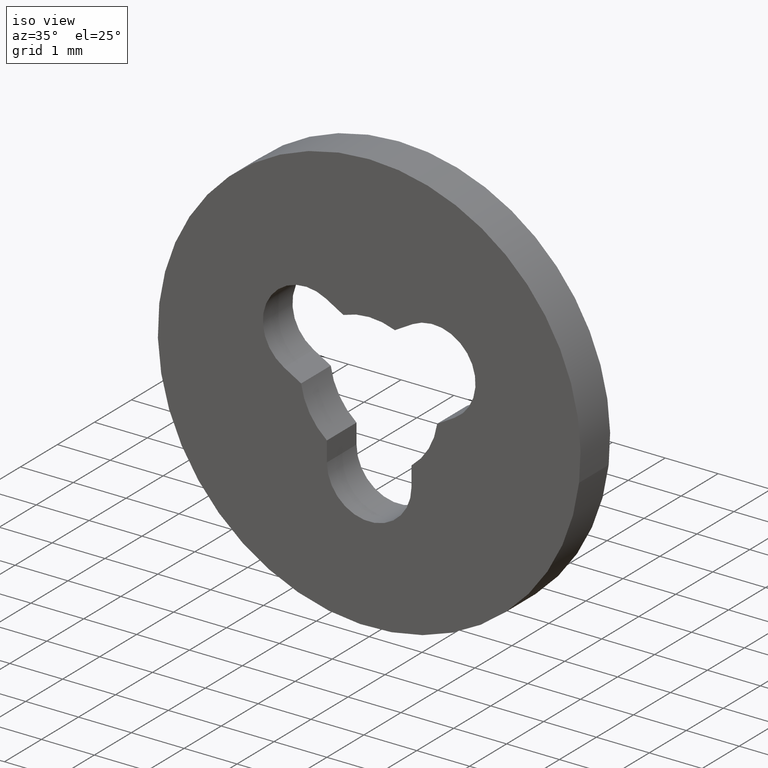
[diagram: clean part render]
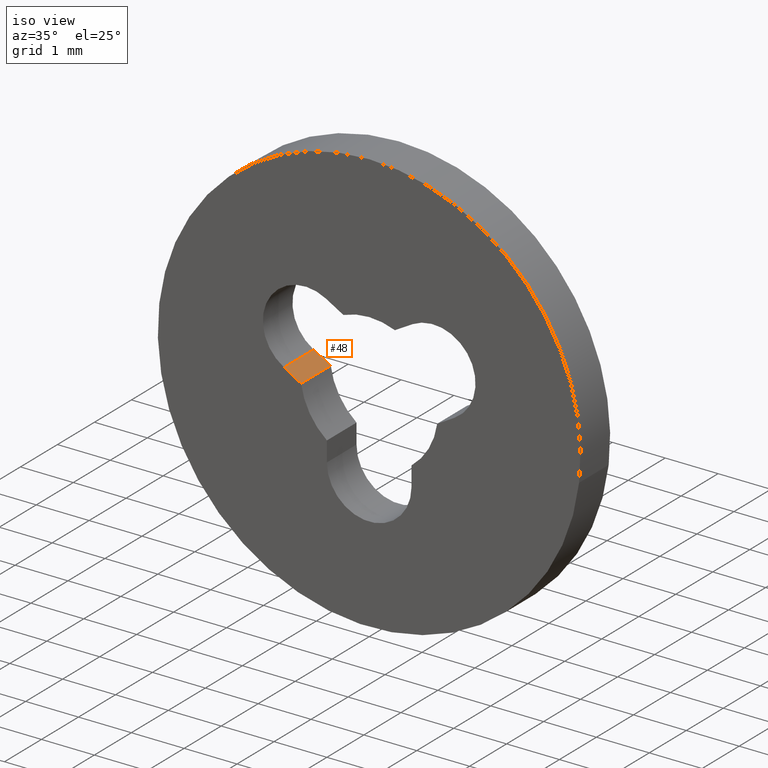
[diagram: same view with one face highlighted and labeled with its STEP entity id]
A machine part, iso view. The second image highlights one B-rep face of the part: STEP entity #48.
In plain terms, the highlighted planar face has unit normal (-0.4999, 0, -0.8661).
Its self-contained STEP definition (entity closure, byte-faithful):
#48=ADVANCED_FACE('',(#139),#138,.F.);
#138=PLANE('',#263);
#139=FACE_OUTER_BOUND('',#264,.T.);
#260=CARTESIAN_POINT('',(-1.25489006909E+00,-8.00000000000E-02,-1.99323455501E-01));
#261=DIRECTION('',(-4.99922376475E-01,0.00000000000E+00,-8.66070215109E-01));
#262=DIRECTION('',(-8.66070215109E-01,0.00000000000E+00,4.99922376475E-01));
#263=AXIS2_PLACEMENT_3D('',#260,#261,#262);
#264=EDGE_LOOP('',(#354,#355,#356,#357));
#354=ORIENTED_EDGE('',*,*,#413,.T.);
#355=ORIENTED_EDGE('',*,*,#424,.F.);
#356=ORIENTED_EDGE('',*,*,#397,.F.);
#357=ORIENTED_EDGE('',*,*,#425,.T.);
#397=EDGE_CURVE('',#489,#496,#497,.T.);
#413=EDGE_CURVE('',#608,#601,#609,.T.);
#424=EDGE_CURVE('',#496,#601,#678,.T.);
#425=EDGE_CURVE('',#489,#608,#684,.T.);
#489=VERTEX_POINT('',#764);
#496=VERTEX_POINT('',#769);
#497=LINE('',#770,#771);
#601=VERTEX_POINT('',#838);
#608=VERTEX_POINT('',#843);
#609=LINE('',#844,#845);
#678=LINE('',#882,#883);
#684=LINE('',#885,#886);
#764=CARTESIAN_POINT('',(-1.61250000000E+00,8.00000000000E-01,7.09999999999E-03));
#769=CARTESIAN_POINT('',(-1.28740006281E+00,8.00000000000E-01,-1.80557686819E-01));
#770=CARTESIAN_POINT('',(-1.61250000000E+00,8.00000000000E-01,7.09999999999E-03));
#771=VECTOR('',#772,3.75373649290E-01);
#772=DIRECTION('',(8.66070215109E-01,0.00000000000E+00,-4.99922376475E-01));
#838=CARTESIAN_POINT('',(-1.28740006281E+00,0.00000000000E+00,-1.80557686819E-01));
#843=CARTESIAN_POINT('',(-1.61250000000E+00,0.00000000000E+00,7.09999999999E-03));
#844=CARTESIAN_POINT('',(-1.61250000000E+00,0.00000000000E+00,7.09999999999E-03));
#845=VECTOR('',#846,3.75373649290E-01);
#846=DIRECTION('',(8.66070215109E-01,0.00000000000E+00,-4.99922376475E-01));
#882=CARTESIAN_POINT('',(-1.28740006281E+00,8.00000000000E-01,-1.80557686819E-01));
#883=VECTOR('',#884,8.00000000000E-01);
#884=DIRECTION('',(0.00000000000E+00,-1.00000000000E+00,0.00000000000E+00));
#885=CARTESIAN_POINT('',(-1.61250000000E+00,8.00000000000E-01,7.09999999999E-03));
#886=VECTOR('',#887,8.00000000000E-01);
#887=DIRECTION('',(0.00000000000E+00,-1.00000000000E+00,0.00000000000E+00));